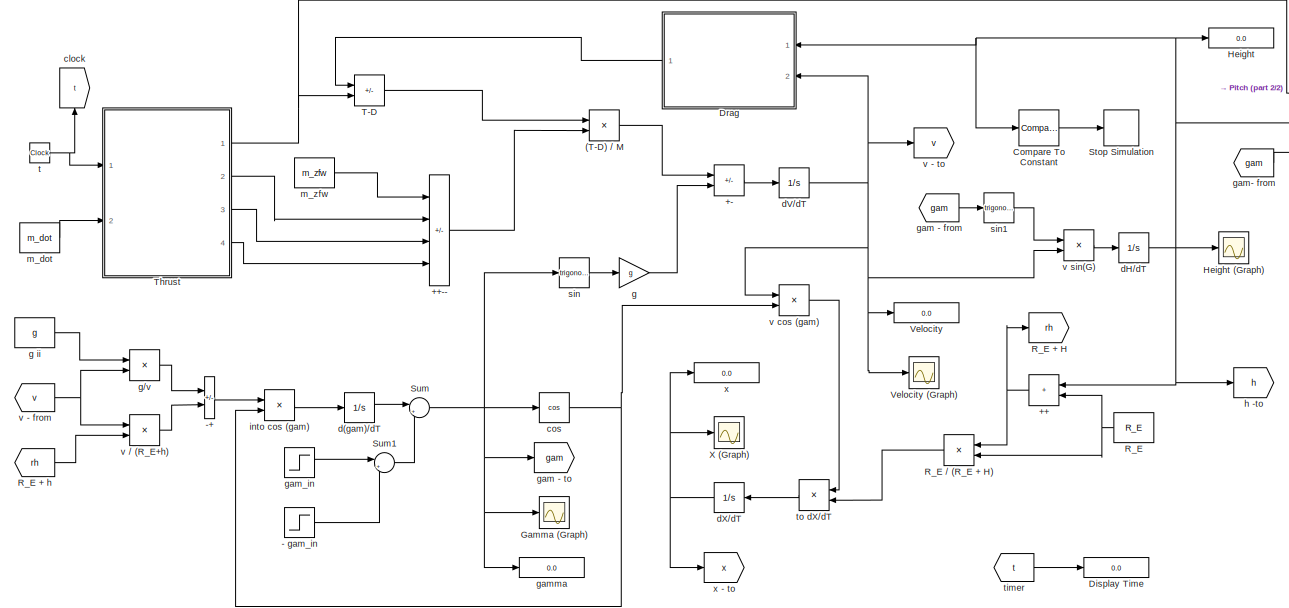
[diagram: root canvas - part 1/2, left side, full height]
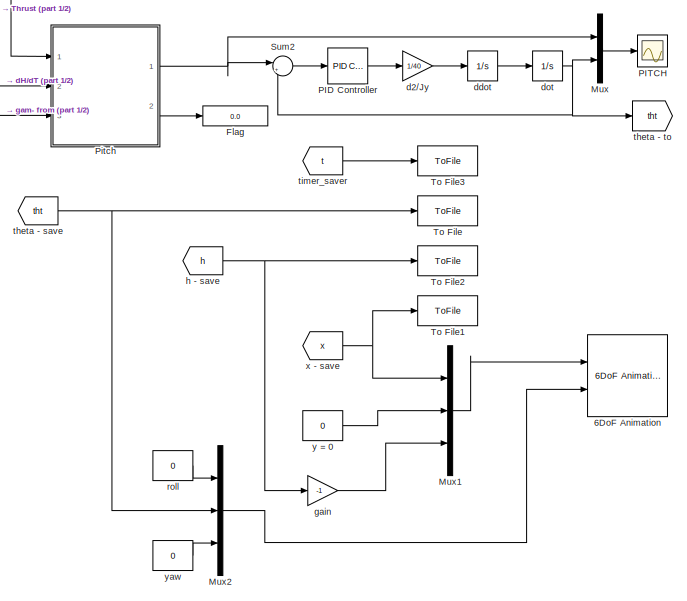
[diagram: root canvas - part 2/2, right side, full height]
MODEL slx_ca2a972fa7f2
KIND model
CONFIG AbsTol = auto
CONFIG EnableMultiTasking = off
CONFIG FixedStep = auto
CONFIG MaxStep = auto
CONFIG MinStep = auto
CONFIG RelTol = 1e-3
CONFIG SampleTimeConstraint = Unconstrained
CONFIG SolverName = ode15s
CONFIG StartTime = 0.0
CONFIG StopTime = 350
BLOCK [Product] (T-D) // M
  Inputs = */
  Ports = [2, 1]
BLOCK [Sum] ++
  IconShape = rectangular
  Ports = [2, 1]
BLOCK [Sum] ++--
  IconShape = rectangular
  Inputs = ++--
  Ports = [4, 1]
BLOCK [Sum] +-
  IconShape = rectangular
  Inputs = +-
  Ports = [2, 1]
BLOCK [Step] - gam_in
  After = -gam_in
  Before = -gam_in
  SampleTime = 0
  Time = t_turn + 1
BLOCK [Sum] -+
  IconShape = rectangular
  Inputs = -+
  Ports = [2, 1]
BLOCK [Reference] 6DoF Animation  REF=aerolibanim/6DoF Animation
  Ports = [2]
  SourceBlock = aerolibanim/6DoF Animation
  SourceProductBaseCode = AE
  SourceType = 6DoF_Animation
BLOCK [Reference] Compare To Constant  REF=simulink/Logic and Bit
Operations/Compare
To Constant
  Ports = [1, 1]
  SourceBlock = simulink/Logic and Bit\nOperations/Compare\nTo Constant
  SourceProductBaseCode = SL
  SourceType = Compare To Constant
BLOCK [Display] Display Time
  Decimation = 1
  Ports = [1]
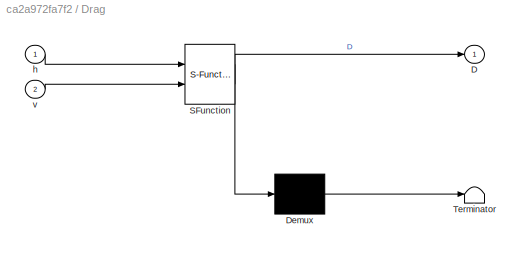
BLOCK [SubSystem] Drag
  ErrorFcn = Stateflow.Translate.translate
  PermitHierarchicalResolution = ExplicitOnly
  Ports = [2, 1]
  RequestExecContextInheritance = off
  SFBlockType = MATLAB Function
  TreatAsAtomicUnit = on
BLOCK [Demux] Drag/ Demux 
  Outputs = 1
  Ports = [1, 1]
BLOCK [S-Function] Drag/ SFunction 
  EnableBusSupport = on
  FunctionName = sf_sfun
  PortCounts = [2 2]
  Ports = [2, 2]
  SFcnIsStateOwnerBlock = off
  SFunctionDeploymentMode = off
  Tag = Stateflow S-Function 3
BLOCK [Terminator] Drag/ Terminator 
BLOCK [Outport] Drag/D
BLOCK [Inport] Drag/h
BLOCK [Inport] Drag/v
  Port = 2
BLOCK [Display] Flag
  Decimation = 1
  Ports = [1]
BLOCK [Scope] Gamma (Graph)
  Floating = off
  NumInputPorts = 1
  Ports = [1]
  ScopeSpecificationString = Simulink.scopes.TimeScopeBlockCfg('CurrentConfiguration', extmgr.ConfigurationSet(extmgr.Configuration('Core','General UI',true),extmgr.Configuration('Core','Source UI',true),extmgr.Configuration('Sources','WiredSimulink',true,'DataLoggingVariableName','ScopeData3'),extmgr.Configuration('Visuals','Time Domain',true,'SerializedDisplays',{struct('MinYLimReal','-1.82606','MaxYLimReal','1.94823','YLab...<+1388ch>
BLOCK [Display] Height
  Decimation = 1
  Ports = [1]
BLOCK [Scope] Height (Graph)
  Floating = off
  NumInputPorts = 1
  Ports = [1]
  ScopeSpecificationString = Simulink.scopes.TimeScopeBlockCfg('CurrentConfiguration', extmgr.ConfigurationSet(extmgr.Configuration('Core','General UI',true),extmgr.Configuration('Core','Source UI',true),extmgr.Configuration('Sources','WiredSimulink',true),extmgr.Configuration('Visuals','Time Domain',true,'SerializedDisplays',{struct('MinYLimReal','-6749.5829','MaxYLimReal','33610.86191','YLabelReal','','MinYLimMag','  0.0000...<+1443ch>
BLOCK [Mux] Mux
  DisplayOption = bar
  Inputs = 2
  Ports = [2, 1]
BLOCK [Mux] Mux1
  DisplayOption = bar
  Inputs = 3
  Ports = [3, 1]
BLOCK [Mux] Mux2
  DisplayOption = bar
  Inputs = 3
  Ports = [3, 1]
BLOCK [Reference] PID Controller  REF=pid_lib/PID Controller
  Ports = [1, 1]
  SourceBlock = pid_lib/PID Controller
  SourceProductBaseCode = SL
  SourceType = PID 1dof
BLOCK [Scope] PITCH
  Floating = off
  NumInputPorts = 1
  Ports = [1]
  ScopeSpecificationString = Simulink.scopes.TimeScopeBlockCfg('CurrentConfiguration', extmgr.ConfigurationSet(extmgr.Configuration('Core','General UI',true),extmgr.Configuration('Core','Source UI',true),extmgr.Configuration('Sources','WiredSimulink',true,'DataLoggingVariableName','ScopeData4'),extmgr.Configuration('Visuals','Time Domain',true,'SerializedDisplays',{struct('MinYLimReal','0.00773','MaxYLimReal','3.4898','YLabel...<+1399ch>
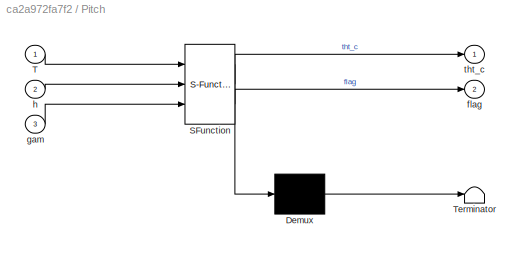
BLOCK [SubSystem] Pitch
  ErrorFcn = Stateflow.Translate.translate
  PermitHierarchicalResolution = ExplicitOnly
  Ports = [3, 2]
  RequestExecContextInheritance = off
  SFBlockType = MATLAB Function
  TreatAsAtomicUnit = on
BLOCK [Demux] Pitch/ Demux 
  Outputs = 1
  Ports = [1, 1]
BLOCK [S-Function] Pitch/ SFunction 
  EnableBusSupport = on
  FunctionName = sf_sfun
  PortCounts = [3 3]
  Ports = [3, 3]
  SFcnIsStateOwnerBlock = off
  SFunctionDeploymentMode = off
  Tag = Stateflow S-Function 1
BLOCK [Terminator] Pitch/ Terminator 
BLOCK [Inport] Pitch/T
BLOCK [Outport] Pitch/flag
  Port = 2
BLOCK [Inport] Pitch/gam
  Port = 3
BLOCK [Inport] Pitch/h
  Port = 2
BLOCK [Outport] Pitch/tht_c
BLOCK [Constant] R_E
  Value = R_E
BLOCK [Goto] R_E + H
  GotoTag = rh
BLOCK [From] R_E + h
  GotoTag = rh
BLOCK [Product] R_E // (R_E + H)
  Inputs = /*
  Ports = [2, 1]
BLOCK [Stop] Stop Simulation
BLOCK [Sum] Sum
  Inputs = |++
  Ports = [2, 1]
BLOCK [Sum] Sum1
  Inputs = |++
  Ports = [2, 1]
BLOCK [Sum] Sum2
  Inputs = |+-
  Ports = [2, 1]
BLOCK [Sum] T-D
  IconShape = rectangular
  Inputs = -+
  Ports = [2, 1]
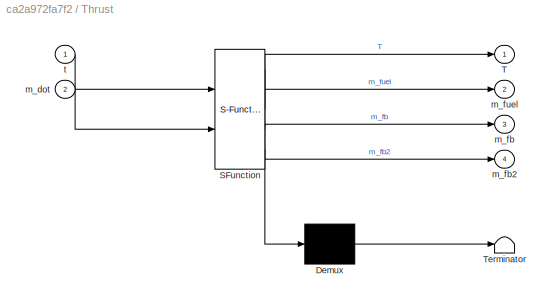
BLOCK [SubSystem] Thrust
  ErrorFcn = Stateflow.Translate.translate
  PermitHierarchicalResolution = ExplicitOnly
  Ports = [2, 4]
  RequestExecContextInheritance = off
  SFBlockType = MATLAB Function
  TreatAsAtomicUnit = on
BLOCK [Demux] Thrust/ Demux 
  Outputs = 1
  Ports = [1, 1]
BLOCK [S-Function] Thrust/ SFunction 
  EnableBusSupport = on
  FunctionName = sf_sfun
  PortCounts = [2 5]
  Ports = [2, 5]
  SFcnIsStateOwnerBlock = off
  SFunctionDeploymentMode = off
  Tag = Stateflow S-Function 2
BLOCK [Terminator] Thrust/ Terminator 
BLOCK [Outport] Thrust/T
BLOCK [Inport] Thrust/m_dot
  Port = 2
BLOCK [Outport] Thrust/m_fb
  Port = 3
BLOCK [Outport] Thrust/m_fb2
  Port = 4
BLOCK [Outport] Thrust/m_fuel
  Port = 2
BLOCK [Inport] Thrust/t
BLOCK [ToFile] To File
  Filename = dof_theta.mat
  MatrixName = tht
  Ports = [1]
BLOCK [ToFile] To File1
  Filename = dof_x.mat
  MatrixName = x
  Ports = [1]
BLOCK [ToFile] To File2
  Filename = dof_h.mat
  MatrixName = h
  Ports = [1]
BLOCK [ToFile] To File3
  Filename = dof_timer.mat
  MatrixName = t
  Ports = [1]
BLOCK [Display] Velocity
  Decimation = 1
  Ports = [1]
BLOCK [Scope] Velocity (Graph)
  Floating = off
  NumInputPorts = 1
  Ports = [1]
  ScopeSpecificationString = Simulink.scopes.TimeScopeBlockCfg('CurrentConfiguration', extmgr.ConfigurationSet(extmgr.Configuration('Core','General UI',true),extmgr.Configuration('Core','Source UI',true),extmgr.Configuration('Sources','WiredSimulink',true,'DataLoggingVariableName','ScopeData1'),extmgr.Configuration('Visuals','Time Domain',true,'SerializedDisplays',{struct('MinYLimReal','-152.02066','MaxYLimReal','1368.19593',...<+1408ch>
BLOCK [Scope] X (Graph)
  Floating = off
  NumInputPorts = 1
  Ports = [1]
  ScopeSpecificationString = Simulink.scopes.TimeScopeBlockCfg('CurrentConfiguration', extmgr.ConfigurationSet(extmgr.Configuration('Core','General UI',true),extmgr.Configuration('Core','Source UI',true),extmgr.Configuration('Sources','WiredSimulink',true,'DataLoggingVariableName','ScopeData2'),extmgr.Configuration('Visuals','Time Domain',true,'SerializedDisplays',{struct('MinYLimReal','-14898.84897','MaxYLimReal','134089.650...<+1427ch>
BLOCK [Goto] clock
  GotoTag = t
  NameLocation = right
BLOCK [Trigonometry] cos
  Operator = cos
  Ports = [1, 1]
BLOCK [Integrator] d(gam)//dT
  InitialCondition = gam_0
  Ports = [1, 1]
BLOCK [Gain] d2//Jy
  Gain = 1/40
BLOCK [Integrator] dH//dT
  InitialCondition = h_0
  Ports = [1, 1]
BLOCK [Integrator] dV//dT
  InitialCondition = v_0
  Ports = [1, 1]
BLOCK [Integrator] dX//dT
  InitialCondition = x_0
  Ports = [1, 1]
BLOCK [Integrator] ddot
  Ports = [1, 1]
BLOCK [Integrator] dot
  InitialCondition = pi/2
  Ports = [1, 1]
BLOCK [Gain] g
  Gain = g
BLOCK [Constant] g ii
  Value = g
BLOCK [Product] g//v
  Inputs = */
  Ports = [2, 1]
BLOCK [Gain] gain
  Gain = -1
BLOCK [From] gam - from
  GotoTag = gam
BLOCK [Goto] gam - to
  GotoTag = gam
BLOCK [From] gam- from
  GotoTag = gam
BLOCK [Step] gam_in
  After = 0
  Before = gam_in
  SampleTime = 0
  Time = t_turn
BLOCK [Display] gamma
  Decimation = 1
  Ports = [1]
BLOCK [From] h - save
  GotoTag = h
BLOCK [Goto] h -to
  GotoTag = h
BLOCK [Product] into cos (gam)
  Ports = [2, 1]
BLOCK [Constant] m_dot
  Value = m_dot
BLOCK [Constant] m_zfw
  Value = m_zfw
BLOCK [Constant] roll
  Value = 0
BLOCK [Trigonometry] sin
  Ports = [1, 1]
BLOCK [Trigonometry] sin1
  Ports = [1, 1]
BLOCK [Clock] t
BLOCK [From] theta - save
  GotoTag = tht
BLOCK [Goto] theta - to
  GotoTag = tht
BLOCK [From] timer
  GotoTag = t
BLOCK [From] timer_saver
  GotoTag = t
BLOCK [Product] to dX//dT
  Ports = [2, 1]
BLOCK [From] v - from
  GotoTag = v
BLOCK [Goto] v - to
  GotoTag = v
BLOCK [Product] v // (R_E+h)
  Inputs = */
  Ports = [2, 1]
BLOCK [Product] v cos (gam)
  Ports = [2, 1]
BLOCK [Product] v sin(G)
  Ports = [2, 1]
BLOCK [Display] x
  Decimation = 1
  Ports = [1]
BLOCK [From] x - save
  GotoTag = x
BLOCK [Goto] x - to
  GotoTag = x
BLOCK [Constant] y = 0
  Value = 0
BLOCK [Constant] yaw
  Value = 0
LINE (T-D) // M:1 -> +-:1
LINE ++--:1 -> (T-D) // M:2
NET ++:1 -> R_E + H:1, R_E // (R_E + H):1
LINE +-:1 -> dV//dT:1
LINE - gam_in:1 -> Sum1:2
LINE -+:1 -> into cos (gam):1
LINE Compare To Constant:1 -> Stop Simulation:1
LINE Drag:1 -> T-D:1
LINE Mux1:1 -> 6DoF Animation:1
LINE Mux2:1 -> 6DoF Animation:2
LINE Mux:1 -> PITCH:1
LINE PID Controller:1 -> d2//Jy:1
NET Pitch:1 -> Mux:1, Sum2:1
LINE Pitch:2 -> Flag:1
LINE R_E + h:1 -> v // (R_E+h):2
LINE R_E // (R_E + H):1 -> to dX//dT:2
NET R_E:1 -> ++:2, R_E // (R_E + H):2
LINE Sum1:1 -> Sum:2
LINE Sum2:1 -> PID Controller:1
NET Sum:1 -> Gamma (Graph):1, cos:1, gam - to:1, gamma:1, sin:1
LINE T-D:1 -> (T-D) // M:1
NET Thrust:1 -> Pitch:1, T-D:2
LINE Thrust:2 -> ++--:2
LINE Thrust:3 -> ++--:3
LINE Thrust:4 -> ++--:4
NET cos:1 -> into cos (gam):2, v cos (gam):2
LINE d(gam)//dT:1 -> Sum:1
LINE d2//Jy:1 -> ddot:1
NET dH//dT:1 -> ++:1, Compare To Constant:1, Drag:1, Height (Graph):1, Height:1, Pitch:2, h -to:1
NET dV//dT:1 -> Drag:2, Velocity (Graph):1, Velocity:1, v - to:1, v cos (gam):1, v sin(G):2
NET dX//dT:1 -> X (Graph):1, x - to:1, x:1
LINE ddot:1 -> dot:1
NET dot:1 -> Mux:2, Sum2:2, theta - to:1
LINE g ii:1 -> g//v:1
LINE g//v:1 -> -+:1
LINE g:1 -> +-:2
LINE gain:1 -> Mux1:3
LINE gam - from:1 -> sin1:1
LINE gam- from:1 -> Pitch:3
LINE gam_in:1 -> Sum1:1
NET h - save:1 -> To File2:1, gain:1
LINE into cos (gam):1 -> d(gam)//dT:1
LINE m_dot:1 -> Thrust:2
LINE m_zfw:1 -> ++--:1
LINE roll:1 -> Mux2:1
LINE sin1:1 -> v sin(G):1
LINE sin:1 -> g:1
NET t:1 -> Thrust:1, clock:1
NET theta - save:1 -> Mux2:2, To File:1
LINE timer:1 -> Display Time:1
LINE timer_saver:1 -> To File3:1
LINE to dX//dT:1 -> dX//dT:1
NET v - from:1 -> g//v:2, v // (R_E+h):1
LINE v // (R_E+h):1 -> -+:2
LINE v cos (gam):1 -> to dX//dT:1
LINE v sin(G):1 -> dH//dT:1
NET x - save:1 -> Mux1:1, To File1:1
LINE y = 0:1 -> Mux1:2
LINE yaw:1 -> Mux2:3
note: NET lines group one-source signal fan-out (src -> all destinations, sorted); 1:1 wires keep LINE
CHART Pitch states=1 transitions=1
  STATE_LABEL 'eML_blk_kernel()'
  STATE_LABEL 'SCRIPT:\nfunction [tht_c, flag] = fcn(T, h, gam)\n\npersistent f\n\nif isempty(f)\n    f = 0;\nend\n\nif T<=0\n    t_c = gam+pi;\n    if t_c > pi\n        t_c = pi;\n    end\n    f = 1;\n\nelseif (T<=0) && (h<1000)\n    t_c = pi/2;\n\nelse\n    t_c =  gam;\nend\n\nflag = f;\ntht_c = t_c;'
CHART Thrust states=1 transitions=1
  STATE_LABEL 'eML_blk_kernel()'
  STATE_LABEL 'SCRIPT:\nfunction [T, m_fuel, m_fb, m_fb2] = fcn(t, m_dot)\n\npersistent mfb\npersistent mfb2\n\nif isempty(mfb)\n    mfb = 0;\nend\nif isempty(mfb2)\n    mfb2 = 0;\nend\n\nmfuel = 21491.26;\n\nif (mfb <= 0.67 * mfuel)\n    THR =  346961.2;\n    mfb = t * m_dot;\nelse\n    THR = 0;\nend\n\nif (125 < t) && (t < 295)\n    THR = -110000;\n    mfb2 = (t-125)*(m_dot/3);\nend\n\nT = THR;\nm_fb = mfb;\nm_fb2 = mfb2;\nm_fuel = mfuel;'
CHART Drag states=1 transitions=1
  STATE_LABEL 'eML_blk_kernel()'
  STATE_LABEL 'SCRIPT:\n function D = fcn(h, v)\n% Using Standard Atmosphere Model\n\nCD = 0.075;\nDi = 1.5;\nA = pi*(Di^2)/4;\n\nif h <= 11000\n    T = 15.04 - 0.00649*h;\n    p = 101.29 * ((T+273.1)/288.8)^5.258;\nelseif (11000 < h) && (h <= 25000)\n    T = -56.46;\n    p = 22.65*exp(1.73-0.008157*h);\nelse\n    T = -131.21 + 0.00299*h;\n    p = 2.488 * ((T+273.1)/216.6)^-11.388;\nend\n\nrho = p/(0.2869*(T+273.1))\nDrag = 0.5 * r...<+32ch>'
CHART  states=0 transitions=0
CHART  states=0 transitions=0
CHART  states=0 transitions=0
